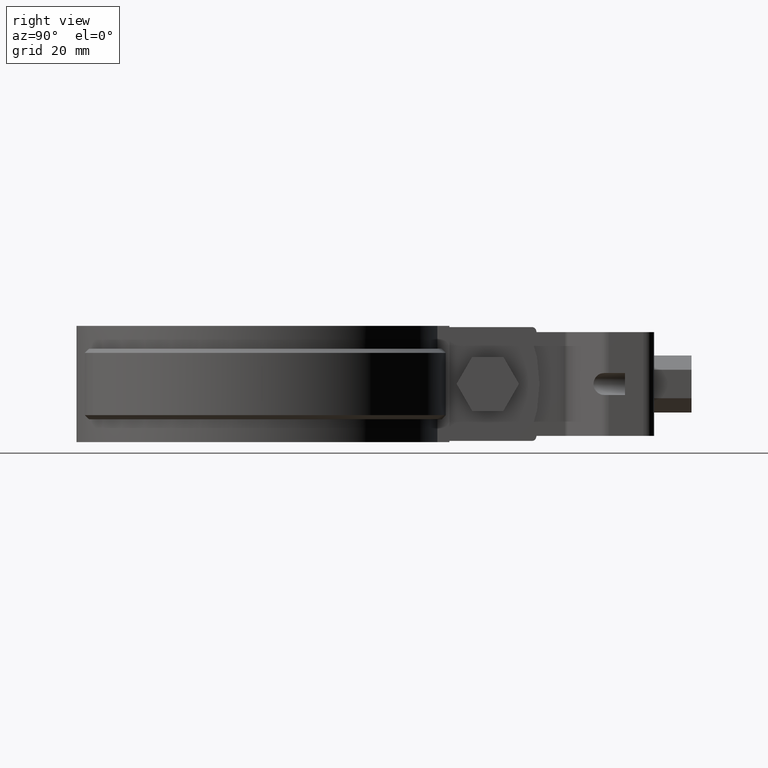
[diagram: clean part render]
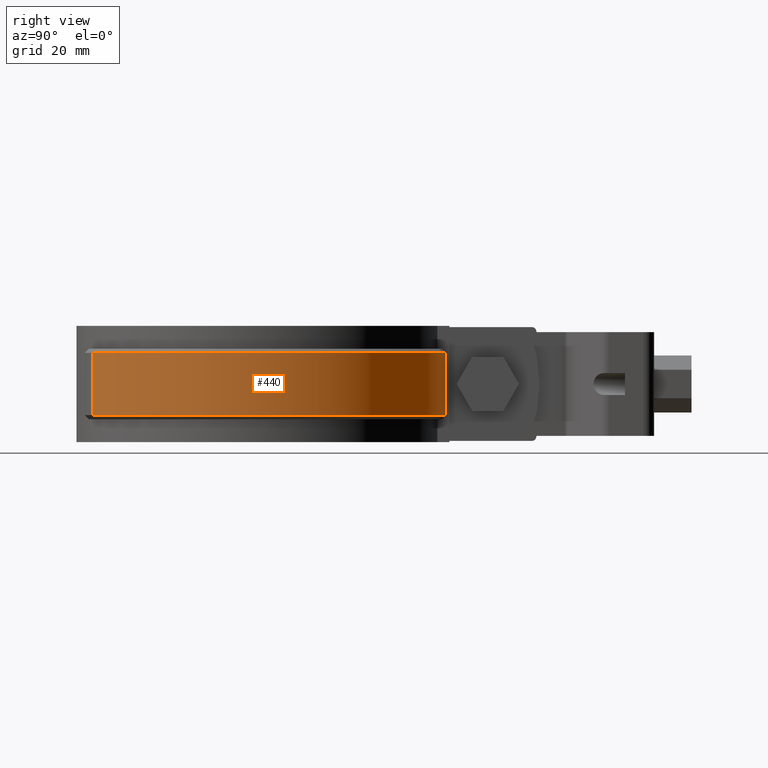
[diagram: same view with one face highlighted and labeled with its STEP entity id]
A machine part, right view. The second image highlights one B-rep face of the part: STEP entity #440.
In plain terms, the highlighted cylindrical surface (partial cylindrical patch) has radius 45.65 mm, axis along (0, 0, 1).
Its self-contained STEP definition (entity closure, byte-faithful):
#440 = ADVANCED_FACE( '', ( #828 ), #829, .T. );
#828 = FACE_OUTER_BOUND( '', #1744, .T. );
#829 = CYLINDRICAL_SURFACE( '', #1745, 45.6500000000000 );
#1744 = EDGE_LOOP( '', ( #3438, #3439, #3440, #3441 ) );
#1745 = AXIS2_PLACEMENT_3D( '', #3442, #3443, #3444 );
#3438 = ORIENTED_EDGE( '', *, *, #5460, .T. );
#3439 = ORIENTED_EDGE( '', *, *, #5558, .T. );
#3440 = ORIENTED_EDGE( '', *, *, #5552, .T. );
#3441 = ORIENTED_EDGE( '', *, *, #5556, .T. );
#3442 = CARTESIAN_POINT( '', ( 0.000000000000000, 0.000000000000000, 8.50000000000000 ) );
#3443 = DIRECTION( '', ( 0.000000000000000, 0.000000000000000, 1.00000000000000 ) );
#3444 = DIRECTION( '', ( -0.109529025191676, -0.993983597772398, 0.000000000000000 ) );
#5460 = EDGE_CURVE( '', #6389, #6387, #6390, .F. );
#5552 = EDGE_CURVE( '', #6547, #6543, #6548, .T. );
#5556 = EDGE_CURVE( '', #6543, #6389, #6552, .T. );
#5558 = EDGE_CURVE( '', #6387, #6547, #6554, .F. );
#6387 = VERTEX_POINT( '', #8808 );
#6389 = VERTEX_POINT( '', #8813 );
#6390 = LINE( '', #8814, #8815 );
#6543 = VERTEX_POINT( '', #9110 );
#6547 = VERTEX_POINT( '', #9115 );
#6548 = LINE( '', #9116, #9117 );
#6552 = CIRCLE( '', #9123, 45.6500000000000 );
#6554 = CIRCLE( '', #9125, 45.6500000000000 );
#8808 = CARTESIAN_POINT( '', ( 6.00000000000000, 45.2539777257204, 7.50000000000000 ) );
#8813 = CARTESIAN_POINT( '', ( 6.00000000000000, 45.2539777257204, -7.50000000000000 ) );
#8814 = CARTESIAN_POINT( '', ( 6.00000000000000, 45.2539777257204, 8.50000000000000 ) );
#8815 = VECTOR( '', #10820, 1000.00000000000 );
#9110 = CARTESIAN_POINT( '', ( 22.5484975690429, -39.6924143556281, -7.50000000000000 ) );
#9115 = CARTESIAN_POINT( '', ( 22.5484975690429, -39.6924143556281, 7.50000000000000 ) );
#9116 = CARTESIAN_POINT( '', ( 22.5484975690429, -39.6924143556281, 8.50000000000000 ) );
#9117 = VECTOR( '', #10957, 1000.00000000000 );
#9123 = AXIS2_PLACEMENT_3D( '', #10963, #10964, #10965 );
#9125 = AXIS2_PLACEMENT_3D( '', #10969, #10970, #10971 );
#10820 = DIRECTION( '', ( 0.000000000000000, 0.000000000000000, -1.00000000000000 ) );
#10957 = DIRECTION( '', ( 0.000000000000000, 0.000000000000000, -1.00000000000000 ) );
#10963 = CARTESIAN_POINT( '', ( 0.000000000000000, 0.000000000000000, -7.50000000000000 ) );
#10964 = DIRECTION( '', ( 0.000000000000000, 0.000000000000000, 1.00000000000000 ) );
#10965 = DIRECTION( '', ( 1.00000000000000, 0.000000000000000, 0.000000000000000 ) );
#10969 = CARTESIAN_POINT( '', ( 0.000000000000000, 0.000000000000000, 7.50000000000000 ) );
#10970 = DIRECTION( '', ( 0.000000000000000, 0.000000000000000, 1.00000000000000 ) );
#10971 = DIRECTION( '', ( 1.00000000000000, 0.000000000000000, 0.000000000000000 ) );